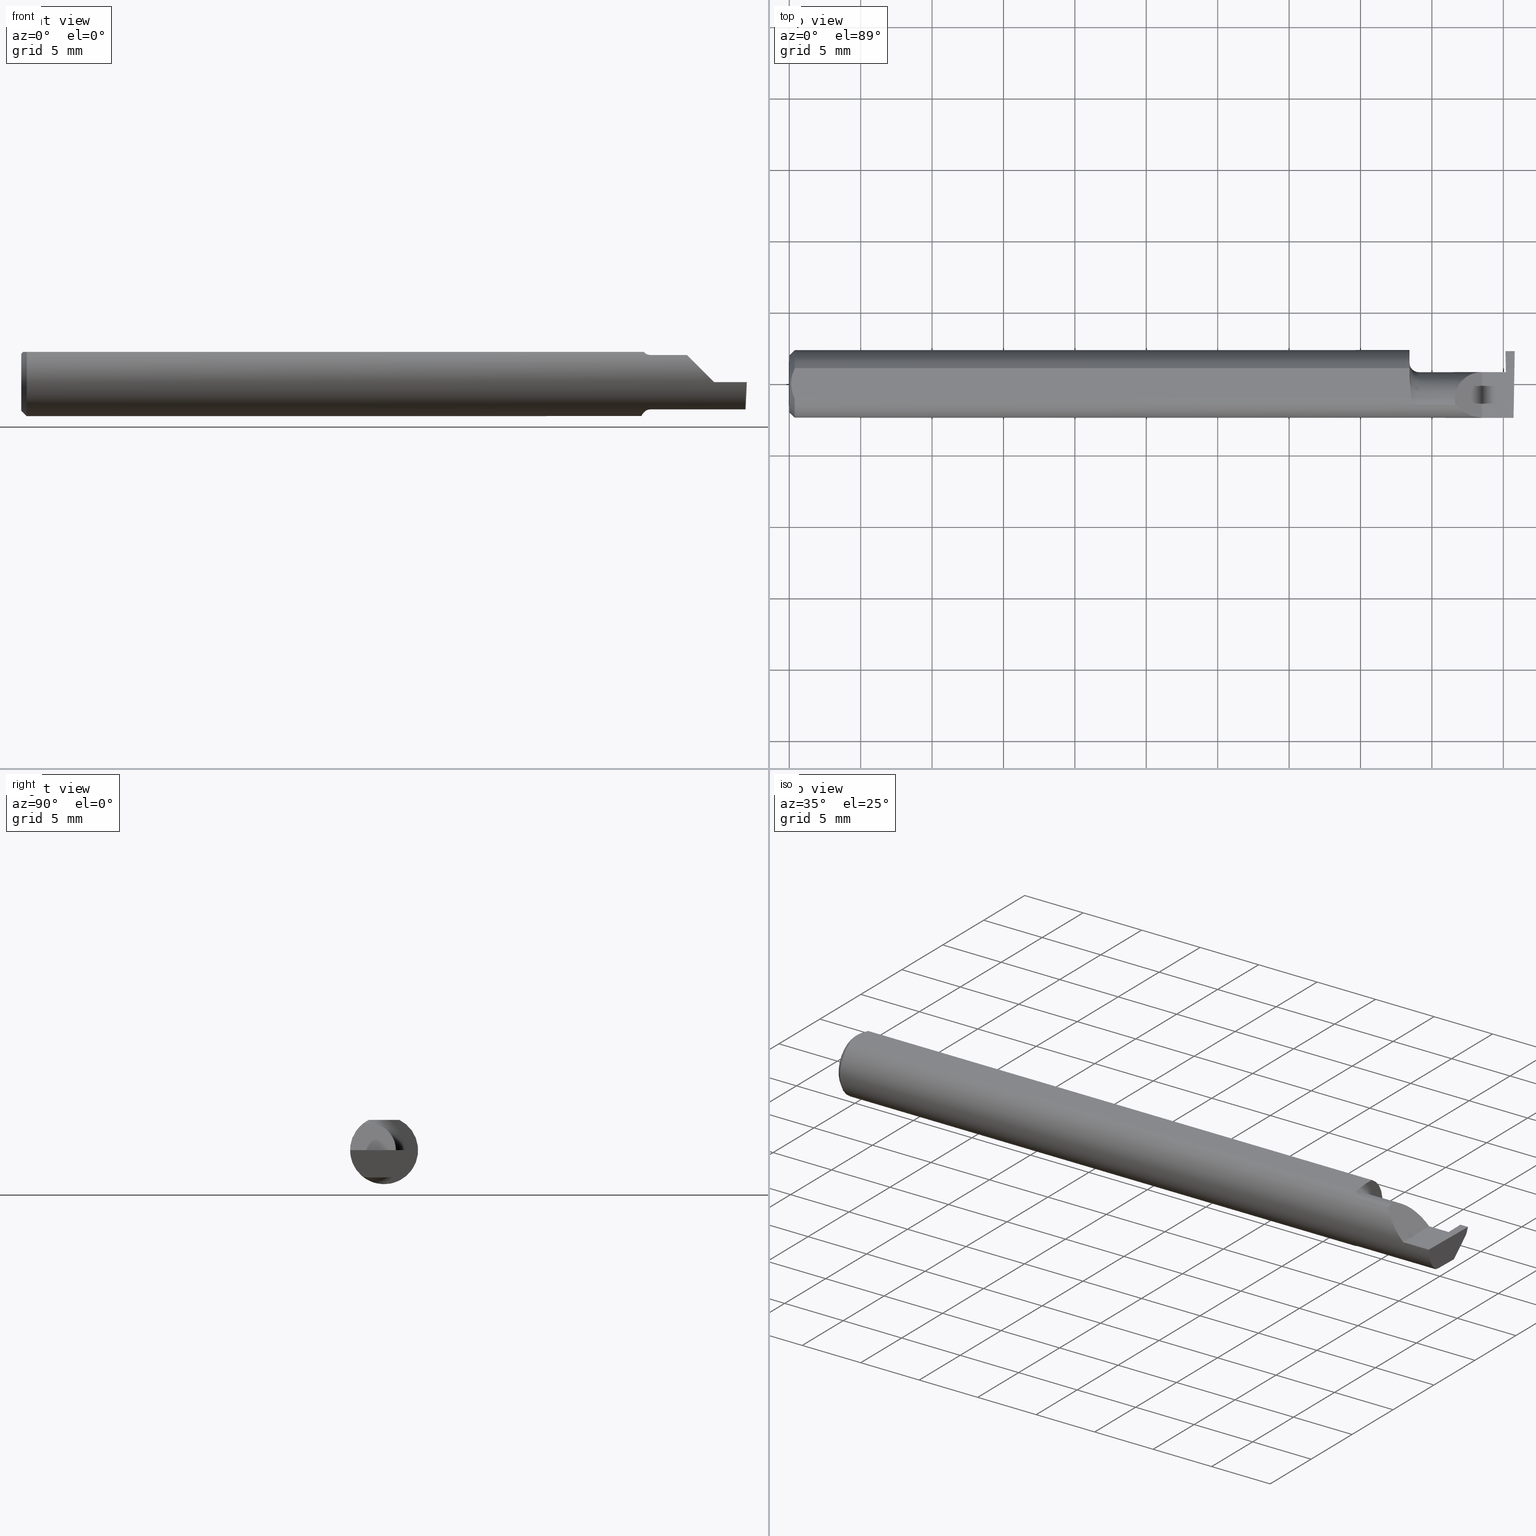
[diagram: canonical four-view strip — front | top / right | iso, engineering-drawing reading convention]
A machine part, canonical four-view strip (front | top / right | iso — engineering-drawing reading convention). The complete STEP part file that produces these views, byte-faithful:
ISO-10303-21;
HEADER;
FILE_DESCRIPTION (( 'STEP AP203' ),
    '1' );
FILE_NAME ('220656-GT025K-4.STEP',
    '2024-07-08T22:53:45',
    ( '' ),
    ( '' ),
    'SwSTEP 2.0',
    'SolidWorks 2024',
    '' );
FILE_SCHEMA (( 'CONFIG_CONTROL_DESIGN' ));
ENDSEC;

DATA;
#1 = DIRECTION ( 'NONE',  ( 0.9992391710281357531, 0.01740988840156643819, 0.03489949668475363781 ) ) ;
#2 = EDGE_LOOP ( 'NONE', ( #700, #435, #71, #231 ) ) ;
#3 = DATE_AND_TIME ( #282, #627 ) ;
#4 = CARTESIAN_POINT ( 'NONE',  ( 0.004999999999999986226, 1.025183015402604432E-17, 0.08359999999999999376 ) ) ;
#5 = CARTESIAN_POINT ( 'NONE',  ( 1.835000000000000187, 0.001333982822017888053, 0.07499999999999998335 ) ) ;
#6 = EDGE_LOOP ( 'NONE', ( #107, #560, #53, #190 ) ) ;
#7 = DIRECTION ( 'NONE',  ( -0.03084274406794415904, -0.7067703747110382073, -0.7067703747110356538 ) ) ;
#8 = CARTESIAN_POINT ( 'NONE',  ( 1.999381723781206155, 0.08348456554894213844, -0.01899999999999999953 ) ) ;
#9 = VERTEX_POINT ( 'NONE', #209 ) ;
#10 = DIRECTION ( 'NONE',  ( -1.000000000000000000, -7.209802597311143795E-16, 1.224646799147358877E-16 ) ) ;
#11 = VECTOR ( 'NONE', #95, 39.37007874015748143 ) ;
#12 = FACE_OUTER_BOUND ( 'NONE', #373, .T. ) ;
#13 = AXIS2_PLACEMENT_3D ( 'NONE', #447, #321, #557 ) ;
#14 = EDGE_CURVE ( 'NONE', #164, #586, #388, .T. ) ;
#15 = VERTEX_POINT ( 'NONE', #157 ) ;
#16 = CARTESIAN_POINT ( 'NONE',  ( 0.009539353699420717939, -0.02875682547511376405, 0.08359999999999997988 ) ) ;
#17 = CARTESIAN_POINT ( 'NONE',  ( 1.996937940439960535, 0.02748456554894196727, -0.07499999999999998335 ) ) ;
#18 = ORIENTED_EDGE ( 'NONE', *, *, #465, .F. ) ;
#19 = EDGE_CURVE ( 'NONE', #256, #454, #41, .T. ) ;
#20 = LINE ( 'NONE', #561, #680 ) ;
#21 = CARTESIAN_POINT ( 'NONE',  ( 1.975284083932824064, 0.03241159854787072775, -0.01903112649442140550 ) ) ;
#22 = ORIENTED_EDGE ( 'NONE', *, *, #650, .F. ) ;
#23 = PRODUCT ( '220656-GT025K-4', '220656-GT025K-4', '', ( #211 ) ) ;
#24 = CARTESIAN_POINT ( 'NONE',  ( 1.980744671832483705, 0.03249136206948449734, -0.1499086886162006582 ) ) ;
#25 = CARTESIAN_POINT ( 'NONE',  ( 1.975284083932824064, 0.08348456554894213844, -0.01899999999999999953 ) ) ;
#26 = CIRCLE ( 'NONE', #276, 0.07499999999999999722 ) ;
#27 = ORIENTED_EDGE ( 'NONE', *, *, #96, .F. ) ;
#28 = VECTOR ( 'NONE', #47, 39.37007874015748143 ) ;
#29 = APPROVAL ( #50, 'UNSPECIFIED' ) ;
#30 =( NAMED_UNIT ( * ) PLANE_ANGLE_UNIT ( ) SI_UNIT ( $, .RADIAN. ) );
#31 = PLANE ( 'NONE',  #262 ) ;
#32 = EDGE_LOOP ( 'NONE', ( #90, #726, #121, #448, #704, #44 ) ) ;
#33 = CARTESIAN_POINT ( 'NONE',  ( 1.978213402547462918, -0.04260000000000001286, -0.07499999999999999722 ) ) ;
#34 = ORIENTED_EDGE ( 'NONE', *, *, #712, .F. ) ;
#35 = LINE ( 'NONE', #568, #11 ) ;
#36 = ORIENTED_EDGE ( 'NONE', *, *, #37, .F. ) ;
#37 = EDGE_CURVE ( 'NONE', #721, #281, #199, .T. ) ;
#38 = CC_DESIGN_APPROVAL ( #141, ( #151 ) ) ;
#39 = PLANE ( 'NONE',  #542 ) ;
#40 = CARTESIAN_POINT ( 'NONE',  ( 0.01499999999999999944, 0.000000000000000000, 0.000000000000000000 ) ) ;
#41 = LINE ( 'NONE', #150, #576 ) ;
#42 = DIRECTION ( 'NONE',  ( -1.000000000000000000, -0.000000000000000000, -0.000000000000000000 ) ) ;
#43 = CARTESIAN_POINT ( 'NONE',  ( 1.716356684838558522, -0.04259999999999997122, 0.08334386600104412568 ) ) ;
#44 = ORIENTED_EDGE ( 'NONE', *, *, #679, .T. ) ;
#45 = APPROVAL_ROLE ( '' ) ;
#46 = EDGE_CURVE ( 'NONE', #482, #488, #611, .T. ) ;
#47 = DIRECTION ( 'NONE',  ( 1.000000000000000000, 0.000000000000000000, 0.000000000000000000 ) ) ;
#48 = ORIENTED_EDGE ( 'NONE', *, *, #697, .F. ) ;
#49 = VECTOR ( 'NONE', #251, 39.37007874015748143 ) ;
#50 = APPROVAL_STATUS ( 'not_yet_approved' ) ;
#51 = CONICAL_SURFACE ( 'NONE', #235, 0.09359999999999998876, 0.7853981633974473908 ) ;
#52 = CARTESIAN_POINT ( 'NONE',  ( 0.000000000000000000, 0.000000000000000000, 0.000000000000000000 ) ) ;
#53 = ORIENTED_EDGE ( 'NONE', *, *, #634, .F. ) ;
#54 = PERSON_AND_ORGANIZATION_ROLE ( 'classification_officer' ) ;
#55 = CARTESIAN_POINT ( 'NONE',  ( 1.979734127201016936, 0.09049136203013631585, -0.1499086240528643699 ) ) ;
#56 = ORIENTED_EDGE ( 'NONE', *, *, #620, .T. ) ;
#57 = DIRECTION ( 'NONE',  ( 0.7071067811865481278, 8.659560562354925463E-17, 0.7071067811865469066 ) ) ;
#58 = APPLICATION_CONTEXT ( 'configuration controlled 3d designs of mechanical parts and assemblies' ) ;
#59 = DIRECTION ( 'NONE',  ( -1.000000000000000000, -0.000000000000000000, -0.000000000000000000 ) ) ;
#60 = ORIENTED_EDGE ( 'NONE', *, *, #697, .T. ) ;
#61 = DATE_AND_TIME ( #162, #317 ) ;
#62 = EDGE_CURVE ( 'NONE', #678, #363, #440, .T. ) ;
#63 = DIRECTION ( 'NONE',  ( -1.000000000000000000, -0.000000000000000000, -0.000000000000000000 ) ) ;
#64 = CARTESIAN_POINT ( 'NONE',  ( 1.866066017177982594, 0.03240000000000000518, 0.04393398282201787380 ) ) ;
#65 = CARTESIAN_POINT ( 'NONE',  ( 1.709999999999999964, -0.04259999999999998510, 0.000000000000000000 ) ) ;
#66 = LINE ( 'NONE', #476, #742 ) ;
#67 = VERTEX_POINT ( 'NONE', #548 ) ;
#68 = DIRECTION ( 'NONE',  ( 0.000000000000000000, 0.000000000000000000, 1.000000000000000000 ) ) ;
#69 = ADVANCED_FACE ( 'NONE', ( #430 ), #667, .F. ) ;
#70 = CARTESIAN_POINT ( 'NONE',  ( 1.709999999999999964, 0.04209513035969834893, 0.08359999999999999376 ) ) ;
#71 = ORIENTED_EDGE ( 'NONE', *, *, #174, .T. ) ;
#72 = FACE_OUTER_BOUND ( 'NONE', #139, .T. ) ;
#73 = APPLICATION_CONTEXT ( 'configuration controlled 3d designs of mechanical parts and assemblies' ) ;
#74 = AXIS2_PLACEMENT_3D ( 'NONE', #443, #676, #381 ) ;
#75 = CARTESIAN_POINT ( 'NONE',  ( 1.975027797685394937, 0.03157410243558826657, -0.01282266061343000085 ) ) ;
#76 = LOCAL_TIME ( 15, 53, 45.00000000000000000, #222 ) ;
#77 = ORIENTED_EDGE ( 'NONE', *, *, #237, .T. ) ;
#78 = EDGE_CURVE ( 'NONE', #15, #326, #414, .T. ) ;
#79 = CARTESIAN_POINT ( 'NONE',  ( 2.000000000000000000, 0.03240000000000002600, 1.169020725542458377E-32 ) ) ;
#80 = CARTESIAN_POINT ( 'NONE',  ( 0.01499999999999999944, 0.000000000000000000, -0.09359999999999998876 ) ) ;
#81 = VERTEX_POINT ( 'NONE', #8 ) ;
#82 = CARTESIAN_POINT ( 'NONE',  ( 1.999287184445666554, 0.08131816941191073733, -0.02116639613703140757 ) ) ;
#83 =( BOUNDED_CURVE ( )  B_SPLINE_CURVE ( 3, ( #259, #672, #566, #498 ),
 .UNSPECIFIED., .F., .T. ) 
 B_SPLINE_CURVE_WITH_KNOTS ( ( 4, 4 ),
 ( 0.08204942185700569990, 0.9826237902196914842 ),
 .UNSPECIFIED. ) 
 CURVE ( )  GEOMETRIC_REPRESENTATION_ITEM ( )  RATIONAL_B_SPLINE_CURVE ( ( 1.000000000000000000, 0.9335481000009943076, 0.9335481000009943076, 1.000000000000000000 ) ) 
 REPRESENTATION_ITEM ( '' )  );
#84 = FACE_OUTER_BOUND ( 'NONE', #32, .T. ) ;
#85 = ORIENTED_EDGE ( 'NONE', *, *, #760, .F. ) ;
#86 = CARTESIAN_POINT ( 'NONE',  ( 1.716356684838558522, -0.04259999999999997122, 0.08334386600104412568 ) ) ;
#87 = EDGE_CURVE ( 'NONE', #224, #9, #519, .T. ) ;
#88 = CARTESIAN_POINT ( 'NONE',  ( 0.000000000000000000, 1.054420894065871180E-17, 0.07860000000000001708 ) ) ;
#89 = AXIS2_PLACEMENT_3D ( 'NONE', #734, #439, #313 ) ;
#90 = ORIENTED_EDGE ( 'NONE', *, *, #547, .T. ) ;
#91 = ORGANIZATION ( 'UNSPECIFIED', 'UNSPECIFIED', '' ) ;
#92 = CARTESIAN_POINT ( 'NONE',  ( 1.734999999999999876, -0.04259999999999997122, -0.07500000000000001110 ) ) ;
#93 = LINE ( 'NONE', #334, #392 ) ;
#94 = ORIENTED_EDGE ( 'NONE', *, *, #133, .T. ) ;
#95 = DIRECTION ( 'NONE',  ( 1.000000000000000000, 0.000000000000000000, 0.000000000000000000 ) ) ;
#96 = EDGE_CURVE ( 'NONE', #482, #772, #638, .T. ) ;
#97 = ORIENTED_EDGE ( 'NONE', *, *, #228, .F. ) ;
#98 = APPLICATION_PROTOCOL_DEFINITION ( 'international standard', 'config_control_design', 1994, #58 ) ;
#99 = PLANE ( 'NONE',  #705 ) ;
#100 = VERTEX_POINT ( 'NONE', #594 ) ;
#101 = VECTOR ( 'NONE', #730, 39.37007874015748143 ) ;
#102 = AXIS2_PLACEMENT_3D ( 'NONE', #736, #674, #450 ) ;
#103 = CARTESIAN_POINT ( 'NONE',  ( 0.000000000000000000, 0.000000000000000000, 0.000000000000000000 ) ) ;
#104 = LINE ( 'NONE', #268, #601 ) ;
#105 = EDGE_CURVE ( 'NONE', #100, #252, #66, .T. ) ;
#106 = CARTESIAN_POINT ( 'NONE',  ( 1.730389214148234434, -0.05750155061631038317, 0.07386444488392700236 ) ) ;
#107 = ORIENTED_EDGE ( 'NONE', *, *, #144, .T. ) ;
#108 = DATE_AND_TIME ( #234, #731 ) ;
#109 = CARTESIAN_POINT ( 'NONE',  ( 0.004999999999999986226, 1.025183015402604432E-17, 0.08359999999999999376 ) ) ;
#110 = VECTOR ( 'NONE', #333, 39.37007874015748854 ) ;
#111 = CARTESIAN_POINT ( 'NONE',  ( 1.709999999999999964, -0.006757276995305157297, -0.09335576686851604356 ) ) ;
#112 = LINE ( 'NONE', #365, #406 ) ;
#113 = B_SPLINE_CURVE_WITH_KNOTS ( 'NONE', 3,
 ( #710, #653, #167, #226, #649, #109 ),
 .UNSPECIFIED., .F., .F.,
 ( 4, 2, 4 ),
 ( 0.001518921481343302573, 0.002066509374312902950, 0.002614097267282503544 ),
 .UNSPECIFIED. ) ;
#114 = ORIENTED_EDGE ( 'NONE', *, *, #471, .T. ) ;
#115 = EDGE_CURVE ( 'NONE', #260, #431, #113, .T. ) ;
#116 = DIRECTION ( 'NONE',  ( 0.000000000000000000, 0.000000000000000000, 1.000000000000000000 ) ) ;
#117 = ORIENTED_EDGE ( 'NONE', *, *, #719, .T. ) ;
#118 = DATE_AND_TIME ( #532, #76 ) ;
#119 = CYLINDRICAL_SURFACE ( 'NONE', #666, 0.07499999999999999722 ) ;
#120 = DIRECTION ( 'NONE',  ( 0.000000000000000000, 0.000000000000000000, 1.000000000000000000 ) ) ;
#121 = ORIENTED_EDGE ( 'NONE', *, *, #760, .T. ) ;
#122 = AXIS2_PLACEMENT_3D ( 'NONE', #577, #513, #148 ) ;
#123 = PLANE ( 'NONE',  #290 ) ;
#124 = AXIS2_PLACEMENT_3D ( 'NONE', #396, #702, #515 ) ;
#125 = ADVANCED_BREP_SHAPE_REPRESENTATION ( '220656-GT025K-4', ( #690, #340 ), #173 ) ;
#126 = ORIENTED_EDGE ( 'NONE', *, *, #46, .F. ) ;
#127 = ADVANCED_FACE ( 'NONE', ( #351 ), #755, .F. ) ;
#128 = LINE ( 'NONE', #497, #769 ) ;
#129 = CARTESIAN_POINT ( 'NONE',  ( 1.720264545693809488, -0.04993027844100267343, -0.07924826417278510449 ) ) ;
#130 = VERTEX_POINT ( 'NONE', #294 ) ;
#131 = FACE_OUTER_BOUND ( 'NONE', #549, .T. ) ;
#132 = CARTESIAN_POINT ( 'NONE',  ( 1.974499999999999922, 0.03239999167003507208, -3.534818988851040720E-05 ) ) ;
#133 = EDGE_CURVE ( 'NONE', #772, #130, #26, .T. ) ;
#134 = ORIENTED_EDGE ( 'NONE', *, *, #152, .F. ) ;
#135 = EDGE_CURVE ( 'NONE', #582, #160, #170, .T. ) ;
#136 = CYLINDRICAL_SURFACE ( 'NONE', #356, 0.07499999999999999722 ) ;
#137 = AXIS2_PLACEMENT_3D ( 'NONE', #714, #59, #590 ) ;
#138 = CARTESIAN_POINT ( 'NONE',  ( 1.718086474849918055, -0.04638796853538176834, -0.08140770120152256151 ) ) ;
#139 = EDGE_LOOP ( 'NONE', ( #77, #698, #18, #660 ) ) ;
#140 = CARTESIAN_POINT ( 'NONE',  ( 1.734999999999999876, -0.04259999999999998510, 0.000000000000000000 ) ) ;
#141 = APPROVAL ( #661, 'UNSPECIFIED' ) ;
#142 = DIRECTION ( 'NONE',  ( -1.000000000000000000, -0.000000000000000000, -0.000000000000000000 ) ) ;
#143 = ORIENTED_EDGE ( 'NONE', *, *, #650, .T. ) ;
#144 = EDGE_CURVE ( 'NONE', #100, #732, #112, .T. ) ;
#145 = CARTESIAN_POINT ( 'NONE',  ( 0.01499999999999999598, 0.04209513035969836975, 0.08359999999999999376 ) ) ;
#146 = EDGE_LOOP ( 'NONE', ( #217, #85, #537 ) ) ;
#147 = CARTESIAN_POINT ( 'NONE',  ( 1.980744671832483705, 0.03249136206948449734, -0.1499086886162006582 ) ) ;
#148 = DIRECTION ( 'NONE',  ( 0.000000000000000000, 0.000000000000000000, -1.000000000000000000 ) ) ;
#149 = CONICAL_SURFACE ( 'NONE', #677, 0.09359999999999998876, 0.7853981633974473908 ) ;
#150 = CARTESIAN_POINT ( 'NONE',  ( 1.978216550241089333, 0.05600033826564643213, -0.07500000000000002498 ) ) ;
#151 = SECURITY_CLASSIFICATION ( '', '', #422 ) ;
#152 = EDGE_CURVE ( 'NONE', #9, #224, #574, .T. ) ;
#153 = DIRECTION ( 'NONE',  ( 0.05230942393459524914, 0.000000000000000000, -0.9986309249005013156 ) ) ;
#154 = ADVANCED_FACE ( 'NONE', ( #597 ), #149, .T. ) ;
#155 = ORIENTED_EDGE ( 'NONE', *, *, #628, .T. ) ;
#156 = PERSON_AND_ORGANIZATION ( #267, #91 ) ;
#157 = CARTESIAN_POINT ( 'NONE',  ( 1.835000000000000409, -0.04259999999999998510, 0.07499999999999999722 ) ) ;
#158 = DIRECTION ( 'NONE',  ( -0.000000000000000000, 1.000000000000000000, 0.000000000000000000 ) ) ;
#159 = DIRECTION ( 'NONE',  ( 0.000000000000000000, 0.000000000000000000, 1.000000000000000000 ) ) ;
#160 = VERTEX_POINT ( 'NONE', #562 ) ;
#161 = VECTOR ( 'NONE', #158, 39.37007874015748143 ) ;
#162 = CALENDAR_DATE ( 2024, 8, 7 ) ;
#163 = FACE_OUTER_BOUND ( 'NONE', #6, .T. ) ;
#164 = VERTEX_POINT ( 'NONE', #255 ) ;
#165 = APPROVAL_ROLE ( '' ) ;
#166 = DIRECTION ( 'NONE',  ( -1.000000000000000000, -0.000000000000000000, -0.000000000000000000 ) ) ;
#167 = CARTESIAN_POINT ( 'NONE',  ( 0.009492654797564227878, 0.02859466010166631170, 0.08360000000000000764 ) ) ;
#168 = PERSON_AND_ORGANIZATION ( #267, #91 ) ;
#169 = DIRECTION ( 'NONE',  ( -0.9995051766793262571, 0.01744044634007060890, 0.02617694830739122902 ) ) ;
#170 = LINE ( 'NONE', #774, #718 ) ;
#171 = EDGE_LOOP ( 'NONE', ( #526, #308, #655, #355 ) ) ;
#172 = AXIS2_PLACEMENT_3D ( 'NONE', #753, #409, #208 ) ;
#173 =( GEOMETRIC_REPRESENTATION_CONTEXT ( 3 ) GLOBAL_UNCERTAINTY_ASSIGNED_CONTEXT ( ( #657 ) ) GLOBAL_UNIT_ASSIGNED_CONTEXT ( ( #338, #30, #695 ) ) REPRESENTATION_CONTEXT ( 'NONE', 'WORKASPACE' ) );
#174 = EDGE_CURVE ( 'NONE', #586, #256, #493, .T. ) ;
#175 = FACE_OUTER_BOUND ( 'NONE', #543, .T. ) ;
#176 = CARTESIAN_POINT ( 'NONE',  ( 1.711463898467977307, -0.005727447913487201774, 0.08359999999999997988 ) ) ;
#177 = ORIENTED_EDGE ( 'NONE', *, *, #402, .F. ) ;
#178 = PERSON_AND_ORGANIZATION_ROLE ( 'creator' ) ;
#179 = CARTESIAN_POINT ( 'NONE',  ( 0.01499999999999999944, 0.000000000000000000, -0.09359999999999998876 ) ) ;
#180 = CARTESIAN_POINT ( 'NONE',  ( 1.710436655799338901, -0.01945041057485635827, -0.09177104786119411051 ) ) ;
#181 = ORIENTED_EDGE ( 'NONE', *, *, #242, .T. ) ;
#182 = CARTESIAN_POINT ( 'NONE',  ( 0.000000000000000000, -0.04209513035969836975, 0.08359999999999999376 ) ) ;
#183 = CARTESIAN_POINT ( 'NONE',  ( 1.716356684838558522, -0.04259999999999997122, -0.08334386600104412568 ) ) ;
#184 = EDGE_CURVE ( 'NONE', #160, #678, #746, .T. ) ;
#185 = EDGE_LOOP ( 'NONE', ( #491, #603, #458, #295, #347, #248, #60, #556 ) ) ;
#186 = AXIS2_PLACEMENT_3D ( 'NONE', #602, #536, #116 ) ;
#187 = CARTESIAN_POINT ( 'NONE',  ( 0.000000000000000000, 0.000000000000000000, 0.000000000000000000 ) ) ;
#188 = VECTOR ( 'NONE', #10, 39.37007874015748143 ) ;
#189 = PLANE ( 'NONE',  #354 ) ;
#190 = ORIENTED_EDGE ( 'NONE', *, *, #411, .T. ) ;
#191 = CYLINDRICAL_SURFACE ( 'NONE', #446, 0.09359999999999998876 ) ;
#192 = DIRECTION ( 'NONE',  ( 0.000000000000000000, -0.000000000000000000, 1.000000000000000000 ) ) ;
#193 = ORIENTED_EDGE ( 'NONE', *, *, #500, .T. ) ;
#194 = DIRECTION ( 'NONE',  ( 0.000000000000000000, 0.000000000000000000, -1.000000000000000000 ) ) ;
#195 = PLANE ( 'NONE',  #74 ) ;
#196 = VERTEX_POINT ( 'NONE', #25 ) ;
#197 = CARTESIAN_POINT ( 'NONE',  ( 1.996788249052547259, -0.09359999022555408332, -4.277588313355801215E-05 ) ) ;
#198 = ADVANCED_FACE ( 'NONE', ( #613 ), #622, .T. ) ;
#199 = B_SPLINE_CURVE_WITH_KNOTS ( 'NONE', 3,
 ( #335, #273, #370, #176, #725, #658 ),
 .UNSPECIFIED., .F., .F.,
 ( 4, 2, 4 ),
 ( 0.009672910729349542408, 0.01035804079918430792, 0.01104317086901907344 ),
 .UNSPECIFIED. ) ;
#200 = DIRECTION ( 'NONE',  ( 0.01744642479411314534, 0.9998477995484629233, -2.135106780035503491E-18 ) ) ;
#201 = VERTEX_POINT ( 'NONE', #17 ) ;
#202 = DIRECTION ( 'NONE',  ( 1.000000000000000000, 0.000000000000000000, 0.000000000000000000 ) ) ;
#203 = EDGE_LOOP ( 'NONE', ( #684, #567, #738 ) ) ;
#204 = CARTESIAN_POINT ( 'NONE',  ( 1.716129652885479251, -0.04209513035970091632, 0.08359999999999999376 ) ) ;
#205 = ORIENTED_EDGE ( 'NONE', *, *, #352, .T. ) ;
#206 = ADVANCED_FACE ( 'NONE', ( #84 ), #189, .T. ) ;
#207 = LINE ( 'NONE', #271, #161 ) ;
#208 = DIRECTION ( 'NONE',  ( 0.000000000000000000, -0.7071067811865487940, -0.7071067811865462405 ) ) ;
#209 = CARTESIAN_POINT ( 'NONE',  ( 0.000000000000000000, 0.000000000000000000, -0.07860000000000001708 ) ) ;
#210 = AXIS2_PLACEMENT_3D ( 'NONE', #475, #533, #592 ) ;
#211 = MECHANICAL_CONTEXT ( 'NONE', #73, 'mechanical' ) ;
#212 = EDGE_CURVE ( 'NONE', #298, #517, #541, .T. ) ;
#213 = FACE_OUTER_BOUND ( 'NONE', #171, .T. ) ;
#214 = ORIENTED_EDGE ( 'NONE', *, *, #771, .F. ) ;
#215 = APPROVAL_ROLE ( '' ) ;
#216 = CARTESIAN_POINT ( 'NONE',  ( 1.734999999999999876, -0.04259999999999997816, 0.000000000000000000 ) ) ;
#217 = ORIENTED_EDGE ( 'NONE', *, *, #712, .T. ) ;
#218 = LINE ( 'NONE', #629, #393 ) ;
#219 = CARTESIAN_POINT ( 'NONE',  ( 1.910000000000000142, 0.03240000000000002600, 1.102182119232621301E-17 ) ) ;
#220 = ORIENTED_EDGE ( 'NONE', *, *, #342, .F. ) ;
#221 = CIRCLE ( 'NONE', #456, 0.07499999999999999722 ) ;
#222 = COORDINATED_UNIVERSAL_TIME_OFFSET ( 8, 0, .BEHIND. ) ;
#223 = DIRECTION ( 'NONE',  ( -0.7071067811865460184, 0.000000000000000000, 0.7071067811865490160 ) ) ;
#224 = VERTEX_POINT ( 'NONE', #88 ) ;
#225 = DIRECTION ( 'NONE',  ( -0.03056411404777943305, -0.3418603543644915810, -0.9392536042231929283 ) ) ;
#226 = CARTESIAN_POINT ( 'NONE',  ( 0.005981829149300634495, 0.01454044632356570055, 0.08359999999999997988 ) ) ;
#227 = ORIENTED_EDGE ( 'NONE', *, *, #679, .F. ) ;
#228 = EDGE_CURVE ( 'NONE', #9, #499, #247, .T. ) ;
#229 = CARTESIAN_POINT ( 'NONE',  ( 0.01499999999999999944, 0.000000000000000000, 0.000000000000000000 ) ) ;
#230 = DIRECTION ( 'NONE',  ( 0.01742050049977392906, -0.9998482515673753346, -2.130797594924498551E-18 ) ) ;
#231 = ORIENTED_EDGE ( 'NONE', *, *, #19, .T. ) ;
#232 = AXIS2_PLACEMENT_3D ( 'NONE', #40, #463, #159 ) ;
#233 = VECTOR ( 'NONE', #254, 39.37007874015748143 ) ;
#234 = CALENDAR_DATE ( 2024, 8, 7 ) ;
#235 = AXIS2_PLACEMENT_3D ( 'NONE', #550, #258, #194 ) ;
#236 = CARTESIAN_POINT ( 'NONE',  ( 1.854749999999999899, -0.05810704225352111146, -0.07337936794867826185 ) ) ;
#237 = EDGE_CURVE ( 'NONE', #363, #15, #468, .T. ) ;
#238 = CARTESIAN_POINT ( 'NONE',  ( 1.713953896433695334, -0.03733827064844358334, -0.08603332211978831356 ) ) ;
#239 = VERTEX_POINT ( 'NONE', #21 ) ;
#240 = APPROVAL_DATE_TIME ( #118, #141 ) ;
#241 = LINE ( 'NONE', #182, #28 ) ;
#242 = EDGE_CURVE ( 'NONE', #164, #582, #83, .T. ) ;
#243 = CARTESIAN_POINT ( 'NONE',  ( 1.709999999999999964, -0.006757276995305157297, -0.09335576686851604356 ) ) ;
#244 = ORIENTED_EDGE ( 'NONE', *, *, #87, .F. ) ;
#245 = PRODUCT_RELATED_PRODUCT_CATEGORY ( 'detail', '', ( #23 ) ) ;
#246 = DIRECTION ( 'NONE',  ( -1.000000000000000000, -0.000000000000000000, -0.000000000000000000 ) ) ;
#247 = LINE ( 'NONE', #80, #49 ) ;
#248 = ORIENTED_EDGE ( 'NONE', *, *, #349, .T. ) ;
#249 = DIRECTION ( 'NONE',  ( -0.03489418134011375294, -0.0006090802009084601322, 0.9993908270190957621 ) ) ;
#250 = APPROVAL_PERSON_ORGANIZATION ( #168, #141, #45 ) ;
#251 = DIRECTION ( 'NONE',  ( 0.7071067811865481278, 0.000000000000000000, -0.7071067811865469066 ) ) ;
#252 = VERTEX_POINT ( 'NONE', #505 ) ;
#253 = DIMENSIONAL_EXPONENTS ( 1.000000000000000000, 0.000000000000000000, 0.000000000000000000, 0.000000000000000000, 0.000000000000000000, 0.000000000000000000, 0.000000000000000000 ) ;
#254 = DIRECTION ( 'NONE',  ( 0.04124162102275091835, 0.0006089328293546881869, -0.9991490168619618917 ) ) ;
#255 = CARTESIAN_POINT ( 'NONE',  ( 1.995486889784650053, -0.05810704225352111146, -0.07337936794867826185 ) ) ;
#256 = VERTEX_POINT ( 'NONE', #386 ) ;
#257 = EDGE_CURVE ( 'NONE', #160, #732, #434, .T. ) ;
#258 = DIRECTION ( 'NONE',  ( 1.000000000000000000, 0.000000000000000000, 0.000000000000000000 ) ) ;
#259 = CARTESIAN_POINT ( 'NONE',  ( 1.995486889784650053, -0.05810704225352111146, -0.07337936794867826185 ) ) ;
#260 = VERTEX_POINT ( 'NONE', #145 ) ;
#261 = DIRECTION ( 'NONE',  ( -0.01744642479411313493, -0.9998477995484629233, 3.463134274570152404E-16 ) ) ;
#262 = AXIS2_PLACEMENT_3D ( 'NONE', #750, #453, #630 ) ;
#263 = AXIS2_PLACEMENT_3D ( 'NONE', #426, #169, #364 ) ;
#264 = CARTESIAN_POINT ( 'NONE',  ( 1.975284083932824064, 0.02994487577554267102, -0.01903262984222200624 ) ) ;
#265 = VERTEX_POINT ( 'NONE', #376 ) ;
#266 = APPLICATION_PROTOCOL_DEFINITION ( 'international standard', 'config_control_design', 1994, #73 ) ;
#267 = PERSON ( 'UNSPECIFIED', 'UNSPECIFIED', 'UNSPECIFIED', ('UNSPECIFIED'), ('UNSPECIFIED'), ('UNSPECIFIED') ) ;
#268 = CARTESIAN_POINT ( 'NONE',  ( 1.709999999999999964, -0.04259999999999997816, -0.07499999999999999722 ) ) ;
#269 = EDGE_CURVE ( 'NONE', #130, #482, #353, .T. ) ;
#270 = VERTEX_POINT ( 'NONE', #737 ) ;
#271 = CARTESIAN_POINT ( 'NONE',  ( 1.709999999999999964, -0.09360000000000003040, 0.08359999999999999376 ) ) ;
#272 = FACE_OUTER_BOUND ( 'NONE', #464, .T. ) ;
#273 = CARTESIAN_POINT ( 'NONE',  ( 1.716082007218903582, -0.03301619840524098320, 0.08359999999999997988 ) ) ;
#274 = DIRECTION ( 'NONE',  ( 0.000000000000000000, 0.000000000000000000, 1.000000000000000000 ) ) ;
#275 = DIRECTION ( 'NONE',  ( -0.03699114979479412729, 0.7066228325057373194, 0.7066228325057346549 ) ) ;
#276 = AXIS2_PLACEMENT_3D ( 'NONE', #302, #297, #534 ) ;
#277 = VERTEX_POINT ( 'NONE', #70 ) ;
#278 = CIRCLE ( 'NONE', #744, 0.09359999999999998876 ) ;
#279 = CARTESIAN_POINT ( 'NONE',  ( 1.978215639910379631, -1.943743329312950241, -0.07620136772299576644 ) ) ;
#280 = PRODUCT_DEFINITION ( 'UNKNOWN', '', #421, #778 ) ;
#281 = VERTEX_POINT ( 'NONE', #551 ) ;
#282 = CALENDAR_DATE ( 2024, 8, 7 ) ;
#283 = FACE_OUTER_BOUND ( 'NONE', #403, .T. ) ;
#284 = ADVANCED_FACE ( 'NONE', ( #12 ), #195, .F. ) ;
#285 = EDGE_LOOP ( 'NONE', ( #214, #22, #48, #445, #424 ) ) ;
#286 = PERSON_AND_ORGANIZATION ( #267, #91 ) ;
#287 = DIRECTION ( 'NONE',  ( 0.000000000000000000, 0.000000000000000000, -1.000000000000000000 ) ) ;
#288 = ORIENTED_EDGE ( 'NONE', *, *, #46, .T. ) ;
#289 = CIRCLE ( 'NONE', #210, 0.07499999999999999722 ) ;
#290 = AXIS2_PLACEMENT_3D ( 'NONE', #306, #423, #584 ) ;
#291 = COORDINATED_UNIVERSAL_TIME_OFFSET ( 8, 0, .BEHIND. ) ;
#292 = DIRECTION ( 'NONE',  ( 1.000000000000000000, 0.000000000000000000, 0.000000000000000000 ) ) ;
#293 = ADVANCED_FACE ( 'NONE', ( #283 ), #529, .F. ) ;
#294 = CARTESIAN_POINT ( 'NONE',  ( 1.734999999999999876, -0.05810704225352107677, -0.07337936794867828960 ) ) ;
#295 = ORIENTED_EDGE ( 'NONE', *, *, #747, .F. ) ;
#296 = EDGE_CURVE ( 'NONE', #499, #270, #564, .T. ) ;
#297 = DIRECTION ( 'NONE',  ( -1.000000000000000000, -0.000000000000000000, -0.000000000000000000 ) ) ;
#298 = VERTEX_POINT ( 'NONE', #339 ) ;
#299 = DATE_TIME_ROLE ( 'creation_date' ) ;
#300 = EDGE_CURVE ( 'NONE', #256, #298, #383, .T. ) ;
#301 = FACE_OUTER_BOUND ( 'NONE', #146, .T. ) ;
#302 = CARTESIAN_POINT ( 'NONE',  ( 1.734999999999999876, -0.04259999999999998510, 0.000000000000000000 ) ) ;
#303 = ORIENTED_EDGE ( 'NONE', *, *, #654, .T. ) ;
#304 = CIRCLE ( 'NONE', #122, 0.02500000000000007425 ) ;
#305 = VECTOR ( 'NONE', #249, 39.37007874015748143 ) ;
#306 = CARTESIAN_POINT ( 'NONE',  ( 1.975284083932825618, -1.943777437782027828, -0.02023551779233937961 ) ) ;
#307 = CARTESIAN_POINT ( 'NONE',  ( 0.01499999999999999944, 0.000000000000000000, 0.000000000000000000 ) ) ;
#308 = ORIENTED_EDGE ( 'NONE', *, *, #62, .F. ) ;
#309 = CARTESIAN_POINT ( 'NONE',  ( 1.977956086143509484, 0.03244268712522559162, -0.07004187842361092597 ) ) ;
#310 = CARTESIAN_POINT ( 'NONE',  ( 1.854690286057537829, -0.08092595952420826577, 0.05530971394246238237 ) ) ;
#311 = ORIENTED_EDGE ( 'NONE', *, *, #620, .F. ) ;
#312 = LINE ( 'NONE', #82, #589 ) ;
#313 = DIRECTION ( 'NONE',  ( 0.000000000000000000, 0.000000000000000000, 1.000000000000000000 ) ) ;
#314 = ORIENTED_EDGE ( 'NONE', *, *, #585, .F. ) ;
#315 = AXIS2_PLACEMENT_3D ( 'NONE', #55, #1, #663 ) ;
#316 = CARTESIAN_POINT ( 'NONE',  ( 0.004999999999999977553, -0.007328888879231072045, 0.08359999999999997988 ) ) ;
#317 = LOCAL_TIME ( 15, 53, 45.00000000000000000, #291 ) ;
#318 = CARTESIAN_POINT ( 'NONE',  ( 1.726446782524423851, -0.05558685324519236498, -0.07531605361338913895 ) ) ;
#319 = EDGE_CURVE ( 'NONE', #521, #265, #400, .T. ) ;
#320 = ORIENTED_EDGE ( 'NONE', *, *, #741, .T. ) ;
#321 = DIRECTION ( 'NONE',  ( -1.000000000000000000, -0.000000000000000000, -0.000000000000000000 ) ) ;
#322 = ORIENTED_EDGE ( 'NONE', *, *, #257, .T. ) ;
#323 = ADVANCED_FACE ( 'NONE', ( #346 ), #397, .F. ) ;
#324 = CARTESIAN_POINT ( 'NONE',  ( 1.975284083932824064, 0.03241159854787072775, -0.01903112649442139162 ) ) ;
#325 = CARTESIAN_POINT ( 'NONE',  ( 2.000000000000000000, -0.09360000000000003040, 0.08359999999999999376 ) ) ;
#326 = VERTEX_POINT ( 'NONE', #219 ) ;
#327 = EDGE_CURVE ( 'NONE', #256, #772, #104, .T. ) ;
#328 = LINE ( 'NONE', #404, #110 ) ;
#329 = VECTOR ( 'NONE', #724, 39.37007874015748143 ) ;
#330 = VECTOR ( 'NONE', #492, 39.37007874015748143 ) ;
#331 = CARTESIAN_POINT ( 'NONE',  ( 1.734999999999999876, -0.05810704225352107677, -0.07337936794867828960 ) ) ;
#332 = ORIENTED_EDGE ( 'NONE', *, *, #135, .F. ) ;
#333 = DIRECTION ( 'NONE',  ( -7.219510806010324627E-16, 0.9999998142845092364, 0.0006094513490878469570 ) ) ;
#334 = CARTESIAN_POINT ( 'NONE',  ( 1.974388135261399002, 0.09138662048129635174, 0.002710717493933112801 ) ) ;
#335 = CARTESIAN_POINT ( 'NONE',  ( 1.716129652885479251, -0.04209513035970091632, 0.08359999999999999376 ) ) ;
#336 = LINE ( 'NONE', #762, #367 ) ;
#337 = ORIENTED_EDGE ( 'NONE', *, *, #257, .F. ) ;
#338 =( CONVERSION_BASED_UNIT ( 'INCH', #764 ) LENGTH_UNIT ( ) NAMED_UNIT ( #253 ) );
#339 = CARTESIAN_POINT ( 'NONE',  ( 1.975284083932824064, 0.02994487577554267102, -0.01903262984222200624 ) ) ;
#340 = AXIS2_PLACEMENT_3D ( 'NONE', #103, #274, #757 ) ;
#341 = CARTESIAN_POINT ( 'NONE',  ( 1.995715029210241243, -0.04259999999999997816, -0.07499999999999998335 ) ) ;
#342 = EDGE_CURVE ( 'NONE', #678, #326, #691, .T. ) ;
#343 = CARTESIAN_POINT ( 'NONE',  ( 2.000000000000000444, 0.09040000000000000813, 6.269377719834979509E-17 ) ) ;
#344 = CARTESIAN_POINT ( 'NONE',  ( 1.910000000000000142, -0.1000000000000000056, 1.102182119232621301E-17 ) ) ;
#345 = CARTESIAN_POINT ( 'NONE',  ( 1.995486889784650053, -0.05810704225352111146, -0.07337936794867826185 ) ) ;
#346 = FACE_OUTER_BOUND ( 'NONE', #408, .T. ) ;
#347 = ORIENTED_EDGE ( 'NONE', *, *, #78, .T. ) ;
#348 = PERSON_AND_ORGANIZATION ( #267, #91 ) ;
#349 = EDGE_CURVE ( 'NONE', #326, #67, #457, .T. ) ;
#350 = DIRECTION ( 'NONE',  ( 0.000000000000000000, 0.000000000000000000, 1.000000000000000000 ) ) ;
#351 = FACE_OUTER_BOUND ( 'NONE', #203, .T. ) ;
#352 = EDGE_CURVE ( 'NONE', #521, #578, #304, .T. ) ;
#353 = B_SPLINE_CURVE_WITH_KNOTS ( 'NONE', 3,
 ( #331, #740, #502, #318, #669, #129, #138, #372 ),
 .UNSPECIFIED., .F., .F.,
 ( 4, 2, 2, 4 ),
 ( 1.968126669309311202E-07, 0.0001761966947278606531, 0.0003521965767887903819, 0.0007041963409106363411 ),
 .UNSPECIFIED. ) ;
#354 = AXIS2_PLACEMENT_3D ( 'NONE', #325, #192, #624 ) ;
#355 = ORIENTED_EDGE ( 'NONE', *, *, #78, .F. ) ;
#356 = AXIS2_PLACEMENT_3D ( 'NONE', #65, #246, #379 ) ;
#357 = CARTESIAN_POINT ( 'NONE',  ( 1.709999999999999964, 0.1323999999999999899, 0.000000000000000000 ) ) ;
#358 = CARTESIAN_POINT ( 'NONE',  ( 1.880893035518783396, -0.09359999999999998876, 0.02910696448121675300 ) ) ;
#359 = EDGE_CURVE ( 'NONE', #454, #201, #35, .T. ) ;
#360 = ORIENTED_EDGE ( 'NONE', *, *, #319, .F. ) ;
#361 = PERSON_AND_ORGANIZATION_ROLE ( 'creator' ) ;
#362 = CARTESIAN_POINT ( 'NONE',  ( 1.910000000000000142, 0.03240000000000002600, 1.102182119232621301E-17 ) ) ;
#363 = VERTEX_POINT ( 'NONE', #696 ) ;
#364 = DIRECTION ( 'NONE',  ( 0.02618093032612054880, 0.000000000000000000, 0.9996572206948033390 ) ) ;
#365 = CARTESIAN_POINT ( 'NONE',  ( 1.899999999999999911, 0.09040000000000000813, -3.918869757271545852E-19 ) ) ;
#366 = ORIENTED_EDGE ( 'NONE', *, *, #675, .F. ) ;
#367 = VECTOR ( 'NONE', #275, 39.37007874015748854 ) ;
#368 = VECTOR ( 'NONE', #225, 39.37007874015748143 ) ;
#369 = CARTESIAN_POINT ( 'NONE',  ( 1.995715029210241243, -0.04259999999999997816, -0.07499999999999998335 ) ) ;
#370 = CARTESIAN_POINT ( 'NONE',  ( 1.714570820222980574, -0.02392027542784302963, 0.08360000000000000764 ) ) ;
#371 = LINE ( 'NONE', #617, #330 ) ;
#372 = CARTESIAN_POINT ( 'NONE',  ( 1.716356684838558522, -0.04259999999999997122, -0.08334386600104412568 ) ) ;
#373 = EDGE_LOOP ( 'NONE', ( #514, #322, #570, #461, #619, #735, #220 ) ) ;
#374 = CARTESIAN_POINT ( 'NONE',  ( 1.910000000000000142, -0.09359999999999998876, 1.102182119232621301E-17 ) ) ;
#375 = ADVANCED_FACE ( 'NONE', ( #163 ), #31, .F. ) ;
#376 = CARTESIAN_POINT ( 'NONE',  ( 1.734999999999999876, -0.05810704225352114616, 0.07337936794867826185 ) ) ;
#377 = ORIENTED_EDGE ( 'NONE', *, *, #135, .T. ) ;
#378 = VECTOR ( 'NONE', #571, 39.37007874015748143 ) ;
#379 = DIRECTION ( 'NONE',  ( 0.000000000000000000, 0.000000000000000000, 1.000000000000000000 ) ) ;
#380 = APPROVAL_PERSON_ORGANIZATION ( #286, #29, #165 ) ;
#381 = DIRECTION ( 'NONE',  ( -1.000000000000000000, 0.000000000000000000, 1.224646799147358877E-16 ) ) ;
#382 = ORIENTED_EDGE ( 'NONE', *, *, #741, .F. ) ;
#383 =( BOUNDED_CURVE ( )  B_SPLINE_CURVE ( 3, ( #33, #765, #401, #703 ),
 .UNSPECIFIED., .F., .F. ) 
 B_SPLINE_CURVE_WITH_KNOTS ( ( 4, 4 ),
 ( 3.140983202202990654, 4.455205321888861647 ),
 .UNSPECIFIED. ) 
 CURVE ( )  GEOMETRIC_REPRESENTATION_ITEM ( )  RATIONAL_B_SPLINE_CURVE ( ( 1.000000000000000000, 0.8611734602017913076, 0.8611734602017913076, 1.000000000000000000 ) ) 
 REPRESENTATION_ITEM ( '' )  );
#384 = ADVANCED_FACE ( 'NONE', ( #272 ), #99, .F. ) ;
#385 = CARTESIAN_POINT ( 'NONE',  ( 0.01206089165507020187, -0.03555991978469316694, 0.08359999999999999376 ) ) ;
#386 = CARTESIAN_POINT ( 'NONE',  ( 1.978213402547462918, -0.04260000000000001286, -0.07499999999999999722 ) ) ;
#387 = ORIENTED_EDGE ( 'NONE', *, *, #212, .T. ) ;
#388 =( BOUNDED_CURVE ( )  B_SPLINE_CURVE ( 3, ( #345, #637, #531, #341 ),
 .UNSPECIFIED., .F., .T. ) 
 B_SPLINE_CURVE_WITH_KNOTS ( ( 4, 4 ),
 ( 0.3794527164476053094, 0.5877155292608622350 ),
 .UNSPECIFIED. ) 
 CURVE ( )  GEOMETRIC_REPRESENTATION_ITEM ( )  RATIONAL_B_SPLINE_CURVE ( ( 1.000000000000000000, 0.9963888149483995926, 0.9963888149483995926, 1.000000000000000000 ) ) 
 REPRESENTATION_ITEM ( '' )  );
#389 = CARTESIAN_POINT ( 'NONE',  ( 2.000000000000000000, -0.04259999999999999204, -0.07499999999999998335 ) ) ;
#390 = ORIENTED_EDGE ( 'NONE', *, *, #296, .T. ) ;
#391 = CARTESIAN_POINT ( 'NONE',  ( 1.716129652885479251, -0.04209513035970091632, 0.08359999999999999376 ) ) ;
#392 = VECTOR ( 'NONE', #758, 39.37007874015748854 ) ;
#393 = VECTOR ( 'NONE', #42, 39.37007874015748143 ) ;
#394 = DIRECTION ( 'NONE',  ( -1.000000000000000000, -0.000000000000000000, -0.000000000000000000 ) ) ;
#395 = DIRECTION ( 'NONE',  ( 3.192376091677297614E-05, 0.9999999994904366085, -3.463312784668718708E-16 ) ) ;
#396 = CARTESIAN_POINT ( 'NONE',  ( 1.734999999999999876, -0.04259999999999997816, 0.000000000000000000 ) ) ;
#397 = PLANE ( 'NONE',  #172 ) ;
#398 = ORIENTED_EDGE ( 'NONE', *, *, #296, .F. ) ;
#399 = PERSON_AND_ORGANIZATION_ROLE ( 'design_owner' ) ;
#400 = B_SPLINE_CURVE_WITH_KNOTS ( 'NONE', 3,
 ( #43, #636, #516, #405, #642, #106, #580, #707 ),
 .UNSPECIFIED., .F., .F.,
 ( 4, 2, 2, 4 ),
 ( 1.584523690453504654E-05, 0.0003656721978374873235, 0.0005405856783039566247, 0.0007154991587704259259 ),
 .UNSPECIFIED. ) ;
#401 = CARTESIAN_POINT ( 'NONE',  ( 1.977080687037212847, 0.02094495418688682720, -0.05333678008583642161 ) ) ;
#402 = EDGE_CURVE ( 'NONE', #454, #633, #336, .T. ) ;
#403 = EDGE_LOOP ( 'NONE', ( #506, #511, #94 ) ) ;
#404 = CARTESIAN_POINT ( 'NONE',  ( 1.975284083932825618, -1.943777437782027828, -0.02023551779233937961 ) ) ;
#405 = CARTESIAN_POINT ( 'NONE',  ( 1.724746577633804234, -0.05429945193459818215, 0.07626038032150796175 ) ) ;
#406 = VECTOR ( 'NONE', #487, 39.37007874015748143 ) ;
#407 = VECTOR ( 'NONE', #685, 39.37007874015748143 ) ;
#408 = EDGE_LOOP ( 'NONE', ( #479, #56, #572, #766, #673 ) ) ;
#409 = DIRECTION ( 'NONE',  ( 0.000000000000000000, -0.7071067811865462405, 0.7071067811865487940 ) ) ;
#410 = ORIENTED_EDGE ( 'NONE', *, *, #438, .F. ) ;
#411 = EDGE_CURVE ( 'NONE', #196, #100, #93, .T. ) ;
#412 = PERSON_AND_ORGANIZATION ( #267, #91 ) ;
#413 = FACE_OUTER_BOUND ( 'NONE', #185, .T. ) ;
#414 =( BOUNDED_CURVE ( )  B_SPLINE_CURVE ( 3, ( #417, #5, #64, #362 ),
 .UNSPECIFIED., .F., .T. ) 
 B_SPLINE_CURVE_WITH_KNOTS ( ( 4, 4 ),
 ( 0.000000000000000000, 1.570796326794896558 ),
 .UNSPECIFIED. ) 
 CURVE ( )  GEOMETRIC_REPRESENTATION_ITEM ( )  RATIONAL_B_SPLINE_CURVE ( ( 1.000000000000000000, 0.8047378541243649375, 0.8047378541243649375, 1.000000000000000000 ) ) 
 REPRESENTATION_ITEM ( '' )  );
#415 = CARTESIAN_POINT ( 'NONE',  ( 0.000000000000000000, 0.000000000000000000, 0.000000000000000000 ) ) ;
#416 = LINE ( 'NONE', #236, #329 ) ;
#417 = CARTESIAN_POINT ( 'NONE',  ( 1.835000000000000409, -0.04259999999999998510, 0.07499999999999999722 ) ) ;
#418 = ADVANCED_FACE ( 'NONE', ( #213 ), #459, .F. ) ;
#419 = AXIS2_PLACEMENT_3D ( 'NONE', #605, #545, #481 ) ;
#420 = ORIENTED_EDGE ( 'NONE', *, *, #711, .F. ) ;
#421 = PRODUCT_DEFINITION_FORMATION_WITH_SPECIFIED_SOURCE ( 'ANY', '', #23, .NOT_KNOWN. ) ;
#422 = SECURITY_CLASSIFICATION_LEVEL ( 'unclassified' ) ;
#423 = DIRECTION ( 'NONE',  ( 0.9991492024194463806, -2.513476157016391658E-05, 0.04124161336354303931 ) ) ;
#424 = ORIENTED_EDGE ( 'NONE', *, *, #654, .F. ) ;
#425 = DATE_AND_TIME ( #723, #496 ) ;
#426 = CARTESIAN_POINT ( 'NONE',  ( 1.997382703856816155, 0.09044568507411562819, -0.09996573249755577595 ) ) ;
#427 = CARTESIAN_POINT ( 'NONE',  ( 1.910000000000000142, -0.09359999999999998876, 1.102182119232621301E-17 ) ) ;
#428 = ORIENTED_EDGE ( 'NONE', *, *, #471, .F. ) ;
#429 = CARTESIAN_POINT ( 'NONE',  ( 1.974499999999999922, 0.03239999167003507208, -3.534818988851040720E-05 ) ) ;
#430 = FACE_OUTER_BOUND ( 'NONE', #687, .T. ) ;
#431 = VERTEX_POINT ( 'NONE', #4 ) ;
#432 = VECTOR ( 'NONE', #142, 39.37007874015748143 ) ;
#433 = LINE ( 'NONE', #324, #233 ) ;
#434 = LINE ( 'NONE', #683, #626 ) ;
#435 = ORIENTED_EDGE ( 'NONE', *, *, #711, .T. ) ;
#436 = ADVANCED_FACE ( 'NONE', ( #413 ), #119, .T. ) ;
#437 = FACE_OUTER_BOUND ( 'NONE', #606, .T. ) ;
#438 = EDGE_CURVE ( 'NONE', #164, #130, #416, .T. ) ;
#439 = DIRECTION ( 'NONE',  ( -1.000000000000000000, -0.000000000000000000, -0.000000000000000000 ) ) ;
#440 =( BOUNDED_CURVE ( )  B_SPLINE_CURVE ( 3, ( #427, #358, #310, #490 ),
 .UNSPECIFIED., .F., .T. ) 
 B_SPLINE_CURVE_WITH_KNOTS ( ( 4, 4 ),
 ( 4.712388980384689674, 5.613420356061718408 ),
 .UNSPECIFIED. ) 
 CURVE ( )  GEOMETRIC_REPRESENTATION_ITEM ( )  RATIONAL_B_SPLINE_CURVE ( ( 1.000000000000000000, 0.9334817841311876530, 0.9334817841311876530, 1.000000000000000000 ) ) 
 REPRESENTATION_ITEM ( '' )  );
#441 = DIRECTION ( 'NONE',  ( 0.000000000000000000, 0.000000000000000000, -1.000000000000000000 ) ) ;
#442 = B_SPLINE_CURVE_WITH_KNOTS ( 'NONE', 3,
 ( #612, #316, #554, #16, #385, #739 ),
 .UNSPECIFIED., .F., .F.,
 ( 4, 2, 4 ),
 ( 0.002614097267282503544, 0.003163218599391118963, 0.003712339931499734381 ),
 .UNSPECIFIED. ) ;
#443 = CARTESIAN_POINT ( 'NONE',  ( 2.000000000000000000, -0.1000000000000000056, 0.000000000000000000 ) ) ;
#444 = ADVANCED_FACE ( 'NONE', ( #301 ), #770, .T. ) ;
#445 = ORIENTED_EDGE ( 'NONE', *, *, #659, .F. ) ;
#446 = AXIS2_PLACEMENT_3D ( 'NONE', #187, #682, #546 ) ;
#447 = CARTESIAN_POINT ( 'NONE',  ( 1.974499999999999922, -0.04259999999999998510, 0.000000000000000000 ) ) ;
#448 = ORIENTED_EDGE ( 'NONE', *, *, #585, .T. ) ;
#449 = CC_DESIGN_DATE_AND_TIME_ASSIGNMENT ( #108, #299, ( #280 ) ) ;
#450 = DIRECTION ( 'NONE',  ( 0.000000000000000000, -1.000000000000000000, 3.463308682636258767E-16 ) ) ;
#451 = CARTESIAN_POINT ( 'NONE',  ( 1.835542168554754827, -0.05300374992736064245, 0.07445783144524570352 ) ) ;
#452 = ORIENTED_EDGE ( 'NONE', *, *, #105, .F. ) ;
#453 = DIRECTION ( 'NONE',  ( 0.000000000000000000, -0.9396926207859080948, 0.3420201433256697121 ) ) ;
#454 = VERTEX_POINT ( 'NONE', #651 ) ;
#455 = DIRECTION ( 'NONE',  ( 7.209054895695219933E-16, -0.9999998142845093474, -0.0006094513490878466317 ) ) ;
#456 = AXIS2_PLACEMENT_3D ( 'NONE', #140, #504, #68 ) ;
#457 = LINE ( 'NONE', #632, #781 ) ;
#458 = ORIENTED_EDGE ( 'NONE', *, *, #628, .F. ) ;
#459 = PLANE ( 'NONE',  #469 ) ;
#460 = PRODUCT_DEFINITION_SHAPE ( 'NONE', 'NONE',  #280 ) ;
#461 = ORIENTED_EDGE ( 'NONE', *, *, #105, .T. ) ;
#462 = COORDINATED_UNIVERSAL_TIME_OFFSET ( 8, 0, .BEHIND. ) ;
#463 = DIRECTION ( 'NONE',  ( -1.000000000000000000, -0.000000000000000000, -0.000000000000000000 ) ) ;
#464 = EDGE_LOOP ( 'NONE', ( #692, #117, #631, #177, #610 ) ) ;
#465 = EDGE_CURVE ( 'NONE', #265, #578, #289, .T. ) ;
#466 = LINE ( 'NONE', #689, #652 ) ;
#467 = DIRECTION ( 'NONE',  ( 1.000000000000000000, 0.000000000000000000, 0.000000000000000000 ) ) ;
#468 =( BOUNDED_CURVE ( )  B_SPLINE_CURVE ( 3, ( #558, #451, #609, #686 ),
 .UNSPECIFIED., .F., .T. ) 
 B_SPLINE_CURVE_WITH_KNOTS ( ( 4, 4 ),
 ( 6.074922494366329140, 6.283185307179586232 ),
 .UNSPECIFIED. ) 
 CURVE ( )  GEOMETRIC_REPRESENTATION_ITEM ( )  RATIONAL_B_SPLINE_CURVE ( ( 1.000000000000000000, 0.9963888149483995926, 0.9963888149483995926, 1.000000000000000000 ) ) 
 REPRESENTATION_ITEM ( '' )  );
#469 = AXIS2_PLACEMENT_3D ( 'NONE', #699, #773, #223 ) ;
#470 = CIRCLE ( 'NONE', #13, 0.07499999999999999722 ) ;
#471 = EDGE_CURVE ( 'NONE', #224, #431, #489, .T. ) ;
#472 = ORIENTED_EDGE ( 'NONE', *, *, #518, .F. ) ;
#473 = DATE_TIME_ROLE ( 'classification_date' ) ;
#474 = CC_DESIGN_PERSON_AND_ORGANIZATION_ASSIGNMENT ( #587, #54, ( #151 ) ) ;
#475 = CARTESIAN_POINT ( 'NONE',  ( 1.734999999999999876, -0.04259999999999998510, 0.000000000000000000 ) ) ;
#476 = CARTESIAN_POINT ( 'NONE',  ( 1.977824098549211040, -0.1003863739339453109, 2.715764672991602673E-18 ) ) ;
#477 = SHAPE_DEFINITION_REPRESENTATION ( #460, #125 ) ;
#478 = DIRECTION ( 'NONE',  ( 0.02617296143184117893, -0.0004568507411563394447, 0.9996573249755575929 ) ) ;
#479 = ORIENTED_EDGE ( 'NONE', *, *, #634, .T. ) ;
#480 = PLANE ( 'NONE',  #263 ) ;
#481 = DIRECTION ( 'NONE',  ( 0.000000000000000000, 0.000000000000000000, 1.000000000000000000 ) ) ;
#482 = VERTEX_POINT ( 'NONE', #539 ) ;
#483 = CC_DESIGN_SECURITY_CLASSIFICATION ( #151, ( #421 ) ) ;
#484 = APPROVAL_DATE_TIME ( #425, #29 ) ;
#485 = ADVANCED_FACE ( 'NONE', ( #486 ), #480, .F. ) ;
#486 = FACE_OUTER_BOUND ( 'NONE', #591, .T. ) ;
#487 = DIRECTION ( 'NONE',  ( 1.000000000000000000, -0.000000000000000000, -0.000000000000000000 ) ) ;
#488 = VERTEX_POINT ( 'NONE', #111 ) ;
#489 = LINE ( 'NONE', #544, #640 ) ;
#490 = CARTESIAN_POINT ( 'NONE',  ( 1.836620632051322310, -0.05810704225352111840, 0.07337936794867826185 ) ) ;
#491 = ORIENTED_EDGE ( 'NONE', *, *, #300, .F. ) ;
#492 = DIRECTION ( 'NONE',  ( 1.000000000000000000, -0.000000000000000000, -0.000000000000000000 ) ) ;
#493 = LINE ( 'NONE', #389, #101 ) ;
#494 = EDGE_CURVE ( 'NONE', #633, #196, #709, .T. ) ;
#495 = ORIENTED_EDGE ( 'NONE', *, *, #14, .T. ) ;
#496 = LOCAL_TIME ( 15, 53, 45.00000000000000000, #768 ) ;
#497 = CARTESIAN_POINT ( 'NONE',  ( 1.854749999999999899, -0.05810704225352111146, 0.07337936794867826185 ) ) ;
#498 = CARTESIAN_POINT ( 'NONE',  ( 1.996788249052547259, -0.09359999022555408332, -4.277588313355801215E-05 ) ) ;
#499 = VERTEX_POINT ( 'NONE', #179 ) ;
#500 = EDGE_CURVE ( 'NONE', #260, #499, #706, .T. ) ;
#501 = FACE_OUTER_BOUND ( 'NONE', #2, .T. ) ;
#502 = CARTESIAN_POINT ( 'NONE',  ( 1.730389671955115949, -0.05750350940205801314, -0.07386306649500064270 ) ) ;
#503 = ORIENTED_EDGE ( 'NONE', *, *, #522, .F. ) ;
#504 = DIRECTION ( 'NONE',  ( -1.000000000000000000, -0.000000000000000000, -0.000000000000000000 ) ) ;
#505 = CARTESIAN_POINT ( 'NONE',  ( 1.975510542377208578, 0.03240000000000000518, 1.857359675493197298E-17 ) ) ;
#506 = ORIENTED_EDGE ( 'NONE', *, *, #269, .T. ) ;
#507 = AXIS2_PLACEMENT_3D ( 'NONE', #216, #520, #645 ) ;
#508 = VECTOR ( 'NONE', #777, 39.37007874015748143 ) ;
#509 = CARTESIAN_POINT ( 'NONE',  ( 1.709999999999999964, 0.000000000000000000, 0.000000000000000000 ) ) ;
#510 = DIRECTION ( 'NONE',  ( 0.000000000000000000, 0.000000000000000000, -1.000000000000000000 ) ) ;
#511 = ORIENTED_EDGE ( 'NONE', *, *, #96, .T. ) ;
#512 =( LENGTH_UNIT ( ) NAMED_UNIT ( * ) SI_UNIT ( $, .METRE. ) );
#513 = DIRECTION ( 'NONE',  ( 0.000000000000000000, -1.000000000000000000, 0.000000000000000000 ) ) ;
#514 = ORIENTED_EDGE ( 'NONE', *, *, #184, .F. ) ;
#515 = DIRECTION ( 'NONE',  ( 0.000000000000000000, 0.000000000000000000, 1.000000000000000000 ) ) ;
#516 = CARTESIAN_POINT ( 'NONE',  ( 1.720259025420519450, -0.04992838138009422083, 0.07925011723318650669 ) ) ;
#517 = VERTEX_POINT ( 'NONE', #429 ) ;
#518 = EDGE_CURVE ( 'NONE', #732, #81, #662, .T. ) ;
#519 = CIRCLE ( 'NONE', #767, 0.07860000000000001708 ) ;
#520 = DIRECTION ( 'NONE',  ( -1.000000000000000000, -0.000000000000000000, -0.000000000000000000 ) ) ;
#521 = VERTEX_POINT ( 'NONE', #600 ) ;
#522 = EDGE_CURVE ( 'NONE', #281, #488, #694, .T. ) ;
#523 = DIRECTION ( 'NONE',  ( 0.9986309243930281410, -3.188005489064582067E-05, 0.05230942390801322089 ) ) ;
#524 = ORIENTED_EDGE ( 'NONE', *, *, #494, .F. ) ;
#525 = FACE_OUTER_BOUND ( 'NONE', #285, .T. ) ;
#526 = ORIENTED_EDGE ( 'NONE', *, *, #237, .F. ) ;
#527 = PERSON_AND_ORGANIZATION_ROLE ( 'design_supplier' ) ;
#528 = PLANE ( 'NONE',  #681 ) ;
#529 = TOROIDAL_SURFACE ( 'NONE', #507, 0.09999999999999999167, 0.02500000000000007425 ) ;
#530 = APPROVAL_PERSON_ORGANIZATION ( #575, #559, #215 ) ;
#531 = CARTESIAN_POINT ( 'NONE',  ( 1.995624014772495514, -0.04781600192481524209, -0.07499999999999999722 ) ) ;
#532 = CALENDAR_DATE ( 2024, 8, 7 ) ;
#533 = DIRECTION ( 'NONE',  ( -1.000000000000000000, -0.000000000000000000, -0.000000000000000000 ) ) ;
#534 = DIRECTION ( 'NONE',  ( 0.000000000000000000, 0.000000000000000000, 1.000000000000000000 ) ) ;
#535 = CARTESIAN_POINT ( 'NONE',  ( 1.975181069320712801, 0.08545240048792480947, -0.01703216506101733196 ) ) ;
#536 = DIRECTION ( 'NONE',  ( -1.000000000000000000, -0.000000000000000000, -0.000000000000000000 ) ) ;
#537 = ORIENTED_EDGE ( 'NONE', *, *, #522, .T. ) ;
#538 = ADVANCED_FACE ( 'NONE', ( #175 ), #123, .F. ) ;
#539 = CARTESIAN_POINT ( 'NONE',  ( 1.716356684838558522, -0.04259999999999997122, -0.08334386600104412568 ) ) ;
#540 = DIRECTION ( 'NONE',  ( 1.000000000000000000, 0.000000000000000000, 0.000000000000000000 ) ) ;
#541 =( BOUNDED_CURVE ( )  B_SPLINE_CURVE ( 3, ( #264, #75, #618, #132 ),
 .UNSPECIFIED., .F., .T. ) 
 B_SPLINE_CURVE_WITH_KNOTS ( ( 4, 4 ),
 ( 4.455205321888865200, 4.711308219781928486 ),
 .UNSPECIFIED. ) 
 CURVE ( )  GEOMETRIC_REPRESENTATION_ITEM ( )  RATIONAL_B_SPLINE_CURVE ( ( 1.000000000000000000, 0.9945417399294781413, 0.9945417399294781413, 1.000000000000000000 ) ) 
 REPRESENTATION_ITEM ( '' )  );
#542 = AXIS2_PLACEMENT_3D ( 'NONE', #147, #455, #623 ) ;
#543 = EDGE_LOOP ( 'NONE', ( #387, #143, #552 ) ) ;
#544 = CARTESIAN_POINT ( 'NONE',  ( 0.01499999999999999944, 1.146269404001922621E-17, 0.09359999999999998876 ) ) ;
#545 = DIRECTION ( 'NONE',  ( -0.000000000000000000, 1.000000000000000000, 1.224646799147353207E-16 ) ) ;
#546 = DIRECTION ( 'NONE',  ( 0.000000000000000000, 0.000000000000000000, 1.000000000000000000 ) ) ;
#547 = EDGE_CURVE ( 'NONE', #270, #721, #241, .T. ) ;
#548 = CARTESIAN_POINT ( 'NONE',  ( 1.974499999999999922, 0.03240000000000000518, 3.551471015152248519E-17 ) ) ;
#549 = EDGE_LOOP ( 'NONE', ( #181, #377, #670, #598, #366, #360, #382, #643, #398, #780, #314, #34, #126, #563, #410 ) ) ;
#550 = CARTESIAN_POINT ( 'NONE',  ( 0.01499999999999999944, 0.000000000000000000, 0.000000000000000000 ) ) ;
#551 = CARTESIAN_POINT ( 'NONE',  ( 1.709999999999999742, 0.01227294415283364248, 0.08359999999999999376 ) ) ;
#552 = ORIENTED_EDGE ( 'NONE', *, *, #719, .F. ) ;
#553 = TOROIDAL_SURFACE ( 'NONE', #124, 0.09999999999999999167, 0.02500000000000007425 ) ;
#554 = CARTESIAN_POINT ( 'NONE',  ( 0.005975039161239314132, -0.01453776427033151748, 0.08360000000000000764 ) ) ;
#555 = CARTESIAN_POINT ( 'NONE',  ( 2.999519565323743132E-32, -0.09359999999999998876, 2.449293598294717754E-16 ) ) ;
#556 = ORIENTED_EDGE ( 'NONE', *, *, #212, .F. ) ;
#557 = DIRECTION ( 'NONE',  ( 0.000000000000000000, 0.000000000000000000, 1.000000000000000000 ) ) ;
#558 = CARTESIAN_POINT ( 'NONE',  ( 1.836620632051322310, -0.05810704225352111840, 0.07337936794867826185 ) ) ;
#559 = APPROVAL ( #761, 'UNSPECIFIED' ) ;
#560 = ORIENTED_EDGE ( 'NONE', *, *, #518, .T. ) ;
#561 = CARTESIAN_POINT ( 'NONE',  ( 1.997436282896842163, 0.05604437736224970185, -0.07500000000000002498 ) ) ;
#562 = CARTESIAN_POINT ( 'NONE',  ( 1.996789369178486373, -0.09359999999634724399, 1.965990811775635199E-19 ) ) ;
#563 = ORIENTED_EDGE ( 'NONE', *, *, #269, .F. ) ;
#564 = CIRCLE ( 'NONE', #232, 0.09359999999999998876 ) ;
#565 = AXIS2_PLACEMENT_3D ( 'NONE', #648, #63, #350 ) ;
#566 = CARTESIAN_POINT ( 'NONE',  ( 1.996026586675631709, -0.09358669535931166128, -0.02913391928411207185 ) ) ;
#567 = ORIENTED_EDGE ( 'NONE', *, *, #319, .T. ) ;
#568 = CARTESIAN_POINT ( 'NONE',  ( 2.000000000000000000, 0.02748456554894193257, -0.07500000000000001110 ) ) ;
#569 = ADVANCED_FACE ( 'NONE', ( #588 ), #528, .F. ) ;
#570 = ORIENTED_EDGE ( 'NONE', *, *, #144, .F. ) ;
#571 = DIRECTION ( 'NONE',  ( -0.000000000000000000, 1.000000000000000000, -0.000000000000000000 ) ) ;
#572 = ORIENTED_EDGE ( 'NONE', *, *, #359, .F. ) ;
#573 = ADVANCED_FACE ( 'NONE', ( #131 ), #191, .T. ) ;
#574 = CIRCLE ( 'NONE', #186, 0.07860000000000001708 ) ;
#575 = PERSON_AND_ORGANIZATION ( #267, #91 ) ;
#576 = VECTOR ( 'NONE', #395, 39.37007874015748854 ) ;
#577 = CARTESIAN_POINT ( 'NONE',  ( 1.734999999999999876, -0.04259999999999997816, 0.09999999999999999167 ) ) ;
#578 = VERTEX_POINT ( 'NONE', #745 ) ;
#579 = CARTESIAN_POINT ( 'NONE',  ( 1.716204482410374155, -0.04226411763296330365, 0.08351490979309547646 ) ) ;
#580 = CARTESIAN_POINT ( 'NONE',  ( 1.732655343791670521, -0.05810704225352126412, 0.07337936794867815082 ) ) ;
#581 = CC_DESIGN_PERSON_AND_ORGANIZATION_ASSIGNMENT ( #412, #178, ( #280 ) ) ;
#582 = VERTEX_POINT ( 'NONE', #197 ) ;
#583 = CC_DESIGN_PERSON_AND_ORGANIZATION_ASSIGNMENT ( #644, #361, ( #421 ) ) ;
#584 = DIRECTION ( 'NONE',  ( 0.04124161337657036158, 0.000000000000000000, -0.9991492027350556970 ) ) ;
#585 = EDGE_CURVE ( 'NONE', #277, #260, #608, .T. ) ;
#586 = VERTEX_POINT ( 'NONE', #369 ) ;
#587 = PERSON_AND_ORGANIZATION ( #267, #91 ) ;
#588 = FACE_OUTER_BOUND ( 'NONE', #708, .T. ) ;
#589 = VECTOR ( 'NONE', #7, 39.37007874015748854 ) ;
#590 = DIRECTION ( 'NONE',  ( 0.000000000000000000, 0.000000000000000000, 1.000000000000000000 ) ) ;
#591 = EDGE_LOOP ( 'NONE', ( #495, #420, #311, #472, #337, #332, #728 ) ) ;
#592 = DIRECTION ( 'NONE',  ( 0.000000000000000000, 0.000000000000000000, 1.000000000000000000 ) ) ;
#593 = ADVANCED_FACE ( 'NONE', ( #437 ), #51, .T. ) ;
#594 = CARTESIAN_POINT ( 'NONE',  ( 1.974499999999999922, 0.09040000000000000813, -3.918869757271545852E-19 ) ) ;
#595 = ORIENTED_EDGE ( 'NONE', *, *, #115, .F. ) ;
#596 = DIRECTION ( 'NONE',  ( -1.000000000000000000, -0.000000000000000000, -0.000000000000000000 ) ) ;
#597 = FACE_OUTER_BOUND ( 'NONE', #664, .T. ) ;
#598 = ORIENTED_EDGE ( 'NONE', *, *, #62, .T. ) ;
#599 = ADVANCED_FACE ( 'NONE', ( #72 ), #136, .T. ) ;
#600 = CARTESIAN_POINT ( 'NONE',  ( 1.716356684838558522, -0.04259999999999997122, 0.08334386600104412568 ) ) ;
#601 = VECTOR ( 'NONE', #394, 39.37007874015748143 ) ;
#602 = CARTESIAN_POINT ( 'NONE',  ( 0.000000000000000000, 0.000000000000000000, 0.000000000000000000 ) ) ;
#603 = ORIENTED_EDGE ( 'NONE', *, *, #327, .T. ) ;
#604 = DIRECTION ( 'NONE',  ( 0.000000000000000000, 0.000000000000000000, -1.000000000000000000 ) ) ;
#605 = CARTESIAN_POINT ( 'NONE',  ( 1.734999999999999876, -0.04259999999999997122, -0.09999999999999999167 ) ) ;
#606 = EDGE_LOOP ( 'NONE', ( #428, #134, #614, #390, #227 ) ) ;
#607 = CC_DESIGN_PERSON_AND_ORGANIZATION_ASSIGNMENT ( #348, #527, ( #421 ) ) ;
#608 = LINE ( 'NONE', #729, #407 ) ;
#609 = CARTESIAN_POINT ( 'NONE',  ( 1.835000000000000409, -0.04781600192481531147, 0.07499999999999999722 ) ) ;
#610 = ORIENTED_EDGE ( 'NONE', *, *, #19, .F. ) ;
#611 = B_SPLINE_CURVE_WITH_KNOTS ( 'NONE', 3,
 ( #183, #238, #727, #180, #720, #243 ),
 .UNSPECIFIED., .F., .F.,
 ( 4, 2, 4 ),
 ( 0.0007041963409106363411, 0.001193146413573859584, 0.001682096486237082827 ),
 .UNSPECIFIED. ) ;
#612 = CARTESIAN_POINT ( 'NONE',  ( 0.004999999999999986226, 1.025183015402604432E-17, 0.08359999999999999376 ) ) ;
#613 = FACE_OUTER_BOUND ( 'NONE', #748, .T. ) ;
#614 = ORIENTED_EDGE ( 'NONE', *, *, #228, .T. ) ;
#615 = CLOSED_SHELL ( 'NONE', ( #436, #599, #293, #752, #154, #573, #206, #284, #418, #593, #569, #127, #444, #198, #688, #323, #375, #776, #69, #384, #538, #485 ) ) ;
#616 = AXIS2_PLACEMENT_3D ( 'NONE', #229, #166, #656 ) ;
#617 = CARTESIAN_POINT ( 'NONE',  ( 1.899999999999999911, 0.08348456554894213844, -0.01900000000000000300 ) ) ;
#618 = CARTESIAN_POINT ( 'NONE',  ( 1.974765001967077271, 0.03239696580267938802, -0.006455479666460840586 ) ) ;
#619 = ORIENTED_EDGE ( 'NONE', *, *, #659, .T. ) ;
#620 = EDGE_CURVE ( 'NONE', #81, #201, #312, .T. ) ;
#621 = PLANE ( 'NONE',  #102 ) ;
#622 = CYLINDRICAL_SURFACE ( 'NONE', #89, 0.07499999999999999722 ) ;
#623 = DIRECTION ( 'NONE',  ( 0.000000000000000000, 0.0006094513490878465233, -0.9999998142845092364 ) ) ;
#624 = DIRECTION ( 'NONE',  ( 1.000000000000000000, 0.000000000000000000, -0.000000000000000000 ) ) ;
#625 = ORIENTED_EDGE ( 'NONE', *, *, #87, .T. ) ;
#626 = VECTOR ( 'NONE', #200, 39.37007874015748143 ) ;
#627 = LOCAL_TIME ( 15, 53, 45.00000000000000000, #462 ) ;
#628 = EDGE_CURVE ( 'NONE', #578, #772, #221, .T. ) ;
#629 = CARTESIAN_POINT ( 'NONE',  ( 1.709999999999999964, -0.04259999999999998510, 0.07499999999999999722 ) ) ;
#630 = DIRECTION ( 'NONE',  ( 0.000000000000000000, -0.3420201433256696566, -0.9396926207859079838 ) ) ;
#631 = ORIENTED_EDGE ( 'NONE', *, *, #771, .T. ) ;
#632 = CARTESIAN_POINT ( 'NONE',  ( 1.709999999999999964, 0.03240000000000001906, 3.551475717527339856E-17 ) ) ;
#633 = VERTEX_POINT ( 'NONE', #309 ) ;
#634 = EDGE_CURVE ( 'NONE', #196, #81, #371, .T. ) ;
#635 = DIRECTION ( 'NONE',  ( 0.05230943362268535013, 0.0006086169641121966277, -0.9986307389317959915 ) ) ;
#636 = CARTESIAN_POINT ( 'NONE',  ( 1.718098441794898124, -0.04641417426599064866, 0.08139430652501544738 ) ) ;
#637 = CARTESIAN_POINT ( 'NONE',  ( 1.995547692684113805, -0.05300374992736055918, -0.07445783144524571739 ) ) ;
#638 = CIRCLE ( 'NONE', #419, 0.02500000000000007425 ) ;
#639 = FACE_OUTER_BOUND ( 'NONE', #775, .T. ) ;
#640 = VECTOR ( 'NONE', #57, 39.37007874015748143 ) ;
#641 = CC_DESIGN_DATE_AND_TIME_ASSIGNMENT ( #61, #473, ( #151 ) ) ;
#642 = CARTESIAN_POINT ( 'NONE',  ( 1.726469028275930961, -0.05559939362423893527, 0.07530665289274068863 ) ) ;
#643 = ORIENTED_EDGE ( 'NONE', *, *, #547, .F. ) ;
#644 = PERSON_AND_ORGANIZATION ( #267, #91 ) ;
#645 = DIRECTION ( 'NONE',  ( 0.000000000000000000, 0.000000000000000000, 1.000000000000000000 ) ) ;
#646 = ORIENTED_EDGE ( 'NONE', *, *, #133, .F. ) ;
#647 = COORDINATED_UNIVERSAL_TIME_OFFSET ( 8, 0, .BEHIND. ) ;
#648 = CARTESIAN_POINT ( 'NONE',  ( 1.709999999999999742, -0.04259999999999998510, 0.000000000000000000 ) ) ;
#649 = CARTESIAN_POINT ( 'NONE',  ( 0.004999999999999975818, 0.007308422719211830898, 0.08359999999999999376 ) ) ;
#650 = EDGE_CURVE ( 'NONE', #517, #239, #433, .T. ) ;
#651 = CARTESIAN_POINT ( 'NONE',  ( 1.978215639910378298, 0.02748456554894101664, -0.07500000000000031641 ) ) ;
#652 = VECTOR ( 'NONE', #635, 39.37007874015748854 ) ;
#653 = CARTESIAN_POINT ( 'NONE',  ( 0.01203648650249644972, 0.03550565407121128447, 0.08359999999999997988 ) ) ;
#654 = EDGE_CURVE ( 'NONE', #633, #252, #733, .T. ) ;
#655 = ORIENTED_EDGE ( 'NONE', *, *, #342, .T. ) ;
#656 = DIRECTION ( 'NONE',  ( 0.000000000000000000, 0.000000000000000000, 1.000000000000000000 ) ) ;
#657 = UNCERTAINTY_MEASURE_WITH_UNIT (LENGTH_MEASURE( 1.000000000000000082E-05 ), #338, 'distance_accuracy_value', 'NONE');
#658 = CARTESIAN_POINT ( 'NONE',  ( 1.709999999999999742, 0.01227294415283364248, 0.08359999999999999376 ) ) ;
#659 = EDGE_CURVE ( 'NONE', #252, #67, #668, .T. ) ;
#660 = ORIENTED_EDGE ( 'NONE', *, *, #675, .T. ) ;
#661 = APPROVAL_STATUS ( 'not_yet_approved' ) ;
#662 = LINE ( 'NONE', #717, #368 ) ;
#663 = DIRECTION ( 'NONE',  ( 0.03490478697967554222, 0.000000000000000000, -0.9993906422645267851 ) ) ;
#664 = EDGE_LOOP ( 'NONE', ( #244, #114, #595, #193, #97 ) ) ;
#665 = DIRECTION ( 'NONE',  ( 1.000000000000000000, 0.000000000000000000, 0.000000000000000000 ) ) ;
#666 = AXIS2_PLACEMENT_3D ( 'NONE', #713, #596, #782 ) ;
#667 = PLANE ( 'NONE',  #315 ) ;
#668 = LINE ( 'NONE', #79, #188 ) ;
#669 = CARTESIAN_POINT ( 'NONE',  ( 1.724728336617689317, -0.05428341532129051655, -0.07627162539867091140 ) ) ;
#670 = ORIENTED_EDGE ( 'NONE', *, *, #184, .T. ) ;
#671 = DIRECTION ( 'NONE',  ( 1.000000000000000000, 0.000000000000000000, 0.000000000000000000 ) ) ;
#672 = CARTESIAN_POINT ( 'NONE',  ( 1.995561922431087876, -0.08091355869144019330, -0.05531953381055035313 ) ) ;
#673 = ORIENTED_EDGE ( 'NONE', *, *, #494, .T. ) ;
#674 = DIRECTION ( 'NONE',  ( -0.000000000000000000, 3.463308682636258767E-16, 1.000000000000000000 ) ) ;
#675 = EDGE_CURVE ( 'NONE', #265, #363, #128, .T. ) ;
#676 = DIRECTION ( 'NONE',  ( -1.224646799147358877E-16, 0.000000000000000000, -1.000000000000000000 ) ) ;
#677 = AXIS2_PLACEMENT_3D ( 'NONE', #307, #540, #510 ) ;
#678 = VERTEX_POINT ( 'NONE', #374 ) ;
#679 = EDGE_CURVE ( 'NONE', #431, #270, #442, .T. ) ;
#680 = VECTOR ( 'NONE', #261, 39.37007874015748143 ) ;
#681 = AXIS2_PLACEMENT_3D ( 'NONE', #52, #292, #441 ) ;
#682 = DIRECTION ( 'NONE',  ( -1.000000000000000000, -0.000000000000000000, -0.000000000000000000 ) ) ;
#683 = CARTESIAN_POINT ( 'NONE',  ( 1.996678706298551376, -0.09994204647866641866, 4.067411700507134861E-19 ) ) ;
#684 = ORIENTED_EDGE ( 'NONE', *, *, #352, .F. ) ;
#685 = DIRECTION ( 'NONE',  ( -1.000000000000000000, -0.000000000000000000, -0.000000000000000000 ) ) ;
#686 = CARTESIAN_POINT ( 'NONE',  ( 1.835000000000000409, -0.04259999999999998510, 0.07499999999999999722 ) ) ;
#687 = EDGE_LOOP ( 'NONE', ( #763, #524, #303, #452 ) ) ;
#688 = ADVANCED_FACE ( 'NONE', ( #501 ), #621, .F. ) ;
#689 = CARTESIAN_POINT ( 'NONE',  ( 1.978215639910378298, 0.03244570701694828724, -0.07499697642507778539 ) ) ;
#690 = MANIFOLD_SOLID_BREP ( 'Front Angle', #615 ) ;
#691 = LINE ( 'NONE', #344, #378 ) ;
#692 = ORIENTED_EDGE ( 'NONE', *, *, #300, .T. ) ;
#693 = AXIS2_PLACEMENT_3D ( 'NONE', #357, #665, #287 ) ;
#694 = CIRCLE ( 'NONE', #565, 0.09999999999999999167 ) ;
#695 =( NAMED_UNIT ( * ) SI_UNIT ( $, .STERADIAN. ) SOLID_ANGLE_UNIT ( ) );
#696 = CARTESIAN_POINT ( 'NONE',  ( 1.836620632051322310, -0.05810704225352111840, 0.07337936794867826185 ) ) ;
#697 = EDGE_CURVE ( 'NONE', #67, #517, #470, .T. ) ;
#698 = ORIENTED_EDGE ( 'NONE', *, *, #747, .T. ) ;
#699 = CARTESIAN_POINT ( 'NONE',  ( 1.910000000000000142, -0.1000000000000000056, 1.102182119232621301E-17 ) ) ;
#700 = ORIENTED_EDGE ( 'NONE', *, *, #359, .T. ) ;
#701 = CC_DESIGN_PERSON_AND_ORGANIZATION_ASSIGNMENT ( #156, #399, ( #23 ) ) ;
#702 = DIRECTION ( 'NONE',  ( -1.000000000000000000, -0.000000000000000000, -0.000000000000000000 ) ) ;
#703 = CARTESIAN_POINT ( 'NONE',  ( 1.975284083932824064, 0.02994487577554267102, -0.01903262984222200624 ) ) ;
#704 = ORIENTED_EDGE ( 'NONE', *, *, #115, .T. ) ;
#705 = AXIS2_PLACEMENT_3D ( 'NONE', #279, #523, #153 ) ;
#706 = CIRCLE ( 'NONE', #616, 0.09359999999999998876 ) ;
#707 = CARTESIAN_POINT ( 'NONE',  ( 1.734999999999999876, -0.05810704225352114616, 0.07337936794867826185 ) ) ;
#708 = EDGE_LOOP ( 'NONE', ( #751, #625 ) ) ;
#709 = LINE ( 'NONE', #535, #508 ) ;
#710 = CARTESIAN_POINT ( 'NONE',  ( 0.01499999999999999598, 0.04209513035969836975, 0.08359999999999999376 ) ) ;
#711 = EDGE_CURVE ( 'NONE', #201, #586, #20, .T. ) ;
#712 = EDGE_CURVE ( 'NONE', #488, #277, #278, .T. ) ;
#713 = CARTESIAN_POINT ( 'NONE',  ( 1.709999999999999964, -0.04259999999999998510, 0.000000000000000000 ) ) ;
#714 = CARTESIAN_POINT ( 'NONE',  ( 1.734999999999999876, -0.04259999999999997816, 0.000000000000000000 ) ) ;
#715 = ORIENTED_EDGE ( 'NONE', *, *, #14, .F. ) ;
#716 = APPROVAL_DATE_TIME ( #3, #559 ) ;
#717 = CARTESIAN_POINT ( 'NONE',  ( 1.999906583493247680, 0.08935513411407894346, -0.002870745427926564477 ) ) ;
#718 = VECTOR ( 'NONE', #478, 39.37007874015748854 ) ;
#719 = EDGE_CURVE ( 'NONE', #298, #239, #328, .T. ) ;
#720 = CARTESIAN_POINT ( 'NONE',  ( 1.709999999999999742, -0.01308640439514264717, -0.09289765197734373148 ) ) ;
#721 = VERTEX_POINT ( 'NONE', #204 ) ;
#722 = B_SPLINE_CURVE_WITH_KNOTS ( 'NONE', 3,
 ( #391, #579, #749, #86 ),
 .UNSPECIFIED., .F., .F.,
 ( 4, 4 ),
 ( 4.741820243490626067E-07, 1.584523690453504654E-05 ),
 .UNSPECIFIED. ) ;
#723 = CALENDAR_DATE ( 2024, 8, 7 ) ;
#724 = DIRECTION ( 'NONE',  ( -1.000000000000000000, -0.000000000000000000, -0.000000000000000000 ) ) ;
#725 = CARTESIAN_POINT ( 'NONE',  ( 1.709999999999999964, 0.003280657920457313859, 0.08359999999999999376 ) ) ;
#726 = ORIENTED_EDGE ( 'NONE', *, *, #37, .T. ) ;
#727 = CARTESIAN_POINT ( 'NONE',  ( 1.712415450430337716, -0.03151229630690470518, -0.08835846806355296401 ) ) ;
#728 = ORIENTED_EDGE ( 'NONE', *, *, #242, .F. ) ;
#729 = CARTESIAN_POINT ( 'NONE',  ( 0.000000000000000000, 0.04209513035969836975, 0.08359999999999999376 ) ) ;
#730 = DIRECTION ( 'NONE',  ( -1.000000000000000000, -0.000000000000000000, -0.000000000000000000 ) ) ;
#731 = LOCAL_TIME ( 15, 53, 45.00000000000000000, #647 ) ;
#732 = VERTEX_POINT ( 'NONE', #343 ) ;
#733 = LINE ( 'NONE', #24, #305 ) ;
#734 = CARTESIAN_POINT ( 'NONE',  ( 1.709999999999999964, -0.04259999999999998510, 0.000000000000000000 ) ) ;
#735 = ORIENTED_EDGE ( 'NONE', *, *, #349, .F. ) ;
#736 = CARTESIAN_POINT ( 'NONE',  ( 2.000000000000000000, 0.05599964285600403380, -0.07500000000000002498 ) ) ;
#737 = CARTESIAN_POINT ( 'NONE',  ( 0.01499999999999999944, -0.04209513035969836975, 0.08359999999999999376 ) ) ;
#738 = ORIENTED_EDGE ( 'NONE', *, *, #465, .T. ) ;
#739 = CARTESIAN_POINT ( 'NONE',  ( 0.01499999999999999944, -0.04209513035969836975, 0.08359999999999999376 ) ) ;
#740 = CARTESIAN_POINT ( 'NONE',  ( 1.732653034764491951, -0.05810704225352129881, -0.07337936794867813695 ) ) ;
#741 = EDGE_CURVE ( 'NONE', #721, #521, #722, .T. ) ;
#742 = VECTOR ( 'NONE', #230, 39.37007874015748143 ) ;
#743 = ORIENTED_EDGE ( 'NONE', *, *, #327, .F. ) ;
#744 = AXIS2_PLACEMENT_3D ( 'NONE', #509, #202, #604 ) ;
#745 = CARTESIAN_POINT ( 'NONE',  ( 1.734999999999999876, -0.04259999999999997816, 0.07500000000000001110 ) ) ;
#746 = LINE ( 'NONE', #555, #432 ) ;
#747 = EDGE_CURVE ( 'NONE', #15, #578, #218, .T. ) ;
#748 = EDGE_LOOP ( 'NONE', ( #743, #754, #715, #759, #646 ) ) ;
#749 = CARTESIAN_POINT ( 'NONE',  ( 1.716280153739604852, -0.04243240890922538033, 0.08342952773968857760 ) ) ;
#750 = CARTESIAN_POINT ( 'NONE',  ( 1.899999999999999911, 0.09040000000000000813, -3.918869757271545852E-19 ) ) ;
#751 = ORIENTED_EDGE ( 'NONE', *, *, #152, .T. ) ;
#752 = ADVANCED_FACE ( 'NONE', ( #639 ), #553, .F. ) ;
#753 = CARTESIAN_POINT ( 'NONE',  ( 1.899999999999999911, 0.08348456554894213844, -0.01900000000000000300 ) ) ;
#754 = ORIENTED_EDGE ( 'NONE', *, *, #174, .F. ) ;
#755 = TOROIDAL_SURFACE ( 'NONE', #137, 0.09999999999999999167, 0.02500000000000007425 ) ;
#756 = CC_DESIGN_APPROVAL ( #29, ( #421 ) ) ;
#757 = DIRECTION ( 'NONE',  ( 1.000000000000000000, 0.000000000000000000, 0.000000000000000000 ) ) ;
#758 = DIRECTION ( 'NONE',  ( -0.03874971116600714471, 0.3417632683796886228, 0.9389868626722014389 ) ) ;
#759 = ORIENTED_EDGE ( 'NONE', *, *, #438, .T. ) ;
#760 = EDGE_CURVE ( 'NONE', #281, #277, #207, .T. ) ;
#761 = APPROVAL_STATUS ( 'not_yet_approved' ) ;
#762 = CARTESIAN_POINT ( 'NONE',  ( 1.975181069320713245, 0.08545240048792476784, -0.01703216506101738748 ) ) ;
#763 = ORIENTED_EDGE ( 'NONE', *, *, #411, .F. ) ;
#764 = LENGTH_MEASURE_WITH_UNIT ( LENGTH_MEASURE( 0.02539999999999999897 ), #512 );
#765 = CARTESIAN_POINT ( 'NONE',  ( 1.978214534726833840, -0.007134900077140356178, -0.07500000000000002498 ) ) ;
#766 = ORIENTED_EDGE ( 'NONE', *, *, #402, .T. ) ;
#767 = AXIS2_PLACEMENT_3D ( 'NONE', #415, #779, #120 ) ;
#768 = COORDINATED_UNIVERSAL_TIME_OFFSET ( 8, 0, .BEHIND. ) ;
#769 = VECTOR ( 'NONE', #671, 39.37007874015748143 ) ;
#770 = PLANE ( 'NONE',  #693 ) ;
#771 = EDGE_CURVE ( 'NONE', #239, #633, #466, .T. ) ;
#772 = VERTEX_POINT ( 'NONE', #92 ) ;
#773 = DIRECTION ( 'NONE',  ( -0.7071067811865490160, 0.000000000000000000, -0.7071067811865460184 ) ) ;
#774 = CARTESIAN_POINT ( 'NONE',  ( 1.994172072281005237, -0.09355431490906530867, -0.09996576130738771271 ) ) ;
#775 = EDGE_LOOP ( 'NONE', ( #27, #288, #503, #36, #320, #205, #155 ) ) ;
#776 = ADVANCED_FACE ( 'NONE', ( #525 ), #39, .F. ) ;
#777 = DIRECTION ( 'NONE',  ( -0.03699114979479522364, 0.7066228325057373194, 0.7066228325057347659 ) ) ;
#778 = DESIGN_CONTEXT ( 'detailed design', #58, 'design' ) ;
#779 = DIRECTION ( 'NONE',  ( -1.000000000000000000, -0.000000000000000000, -0.000000000000000000 ) ) ;
#780 = ORIENTED_EDGE ( 'NONE', *, *, #500, .F. ) ;
#781 = VECTOR ( 'NONE', #467, 39.37007874015748143 ) ;
#782 = DIRECTION ( 'NONE',  ( 0.000000000000000000, 0.000000000000000000, 1.000000000000000000 ) ) ;
#783 = CC_DESIGN_APPROVAL ( #559, ( #280 ) ) ;
ENDSEC;
END-ISO-10303-21;
